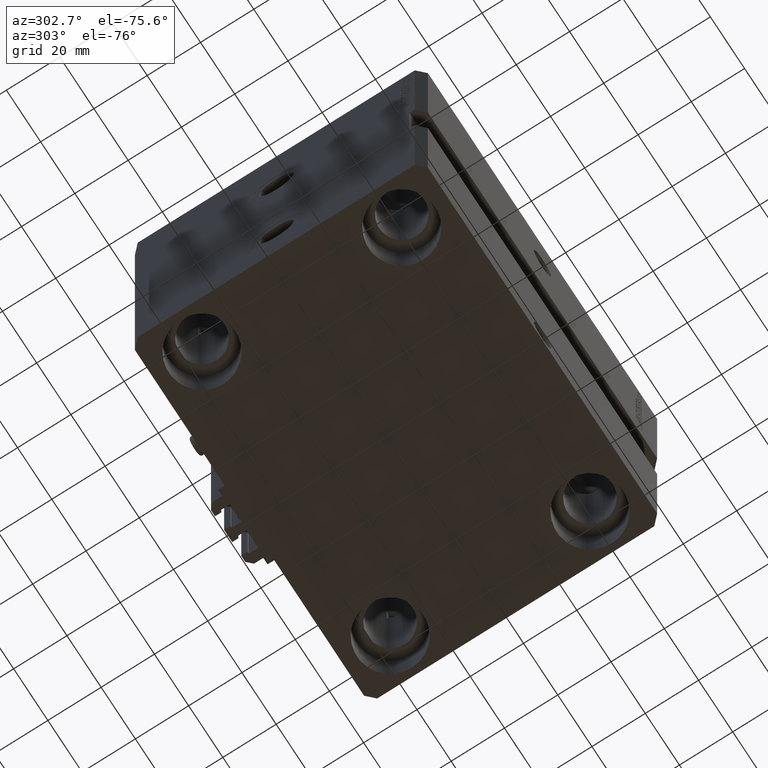
[diagram: clean part render]
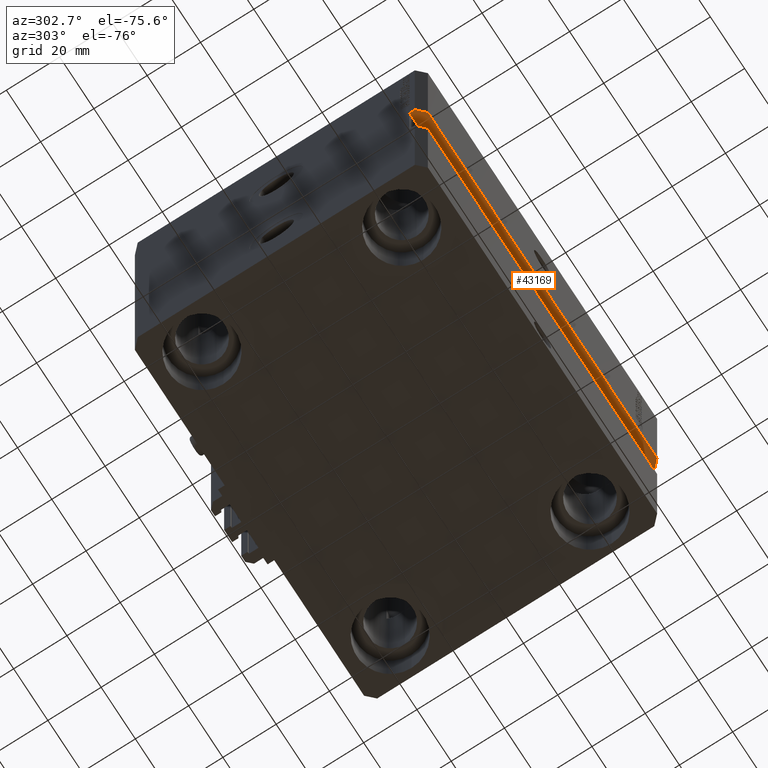
[diagram: same view with one face highlighted and labeled with its STEP entity id]
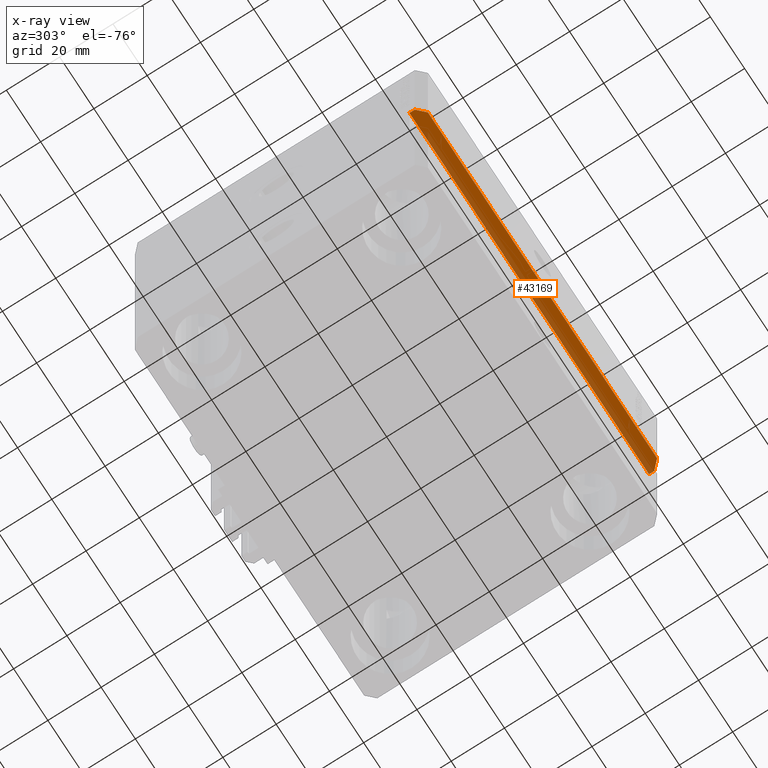
[diagram: x-ray of the same camera — body ghosted, the highlighted face saturated]
A machine part, auxiliary view. The second image highlights one B-rep face of the part: STEP entity #43169.
The next image is the same camera in x-ray: the body ghosted, the highlighted face saturated — about 31% of this face is hidden behind the body in this view.
In plain terms, the highlighted planar face has unit normal (-0, -0, 1).
Its self-contained STEP definition (entity closure, byte-faithful):
#1230 = DIRECTION ( 'NONE',  ( 1.176083712526788232E-16, -1.000000000000000000, -0.000000000000000000 ) ) ;
#1464 = VECTOR ( 'NONE', #26052, 1000.000000000000000 ) ;
#1690 = EDGE_CURVE ( 'NONE', #7225, #8990, #40125, .T. ) ;
#2244 = EDGE_CURVE ( 'NONE', #18995, #4170, #47154, .T. ) ;
#4095 = AXIS2_PLACEMENT_3D ( 'NONE', #7410, #14577, #48605 ) ;
#4170 = VERTEX_POINT ( 'NONE', #43312 ) ;
#5385 = ORIENTED_EDGE ( 'NONE', *, *, #12708, .T. ) ;
#5950 = DIRECTION ( 'NONE',  ( -0.7071067811865474617, -0.7071067811865474617, -2.102802400022912892E-16 ) ) ;
#6751 = CARTESIAN_POINT ( 'NONE',  ( 70.00000000000001421, -54.99999999999997868, -49.99999999999996447 ) ) ;
#6801 = DIRECTION ( 'NONE',  ( -0.7071067811865465735, 0.7071067811865483499, -2.102802400022909441E-16 ) ) ;
#6896 = VECTOR ( 'NONE', #5950, 1000.000000000000114 ) ;
#6906 = ORIENTED_EDGE ( 'NONE', *, *, #1690, .T. ) ;
#7225 = VERTEX_POINT ( 'NONE', #21098 ) ;
#7410 = CARTESIAN_POINT ( 'NONE',  ( 70.00000000000001421, -49.99999999999997868, -49.99999999999996447 ) ) ;
#8990 = VERTEX_POINT ( 'NONE', #46773 ) ;
#9133 = ORIENTED_EDGE ( 'NONE', *, *, #32211, .F. ) ;
#9999 = EDGE_CURVE ( 'NONE', #4170, #7225, #28466, .T. ) ;
#11129 = VERTEX_POINT ( 'NONE', #28902 ) ;
#12581 = VECTOR ( 'NONE', #43766, 1000.000000000000000 ) ;
#12708 = EDGE_CURVE ( 'NONE', #40856, #18995, #19514, .T. ) ;
#14577 = DIRECTION ( 'NONE',  ( -2.973811673103097172E-16, -3.497451472858589416E-32, 1.000000000000000000 ) ) ;
#14821 = PLANE ( 'NONE',  #4095 ) ;
#15435 = LINE ( 'NONE', #37885, #1464 ) ;
#16533 = CARTESIAN_POINT ( 'NONE',  ( -70.00000000000002842, -51.99999999999998579, -50.00000000000000000 ) ) ;
#18460 = DIRECTION ( 'NONE',  ( -1.000000000000000000, -9.912705577010323084E-17, -2.973811673103097172E-16 ) ) ;
#18995 = VERTEX_POINT ( 'NONE', #39521 ) ;
#19514 = LINE ( 'NONE', #30846, #20531 ) ;
#20531 = VECTOR ( 'NONE', #1230, 1000.000000000000000 ) ;
#21098 = CARTESIAN_POINT ( 'NONE',  ( -67.00000000000001421, -55.00000000000000000, -49.99999999999996447 ) ) ;
#26052 = DIRECTION ( 'NONE',  ( 1.176083712526788232E-16, -1.000000000000000000, -0.000000000000000000 ) ) ;
#26107 = LINE ( 'NONE', #29055, #29752 ) ;
#28466 = LINE ( 'NONE', #6751, #12581 ) ;
#28902 = CARTESIAN_POINT ( 'NONE',  ( -70.00000000000001421, -49.99999999999999289, -50.00000000000000000 ) ) ;
#29055 = CARTESIAN_POINT ( 'NONE',  ( 70.00000000000001421, -49.99999999999997868, -49.99999999999996447 ) ) ;
#29752 = VECTOR ( 'NONE', #18460, 1000.000000000000000 ) ;
#30067 = CARTESIAN_POINT ( 'NONE',  ( 70.00000000000001421, -49.99999999999997868, -49.99999999999996447 ) ) ;
#30846 = CARTESIAN_POINT ( 'NONE',  ( 70.00000000000001421, -49.99999999999997868, -49.99999999999996447 ) ) ;
#32211 = EDGE_CURVE ( 'NONE', #40856, #11129, #26107, .T. ) ;
#33550 = FACE_OUTER_BOUND ( 'NONE', #46636, .T. ) ;
#34524 = ORIENTED_EDGE ( 'NONE', *, *, #38385, .F. ) ;
#34771 = ORIENTED_EDGE ( 'NONE', *, *, #2244, .T. ) ;
#37885 = CARTESIAN_POINT ( 'NONE',  ( -70.00000000000001421, -49.99999999999999289, -50.00000000000000000 ) ) ;
#38385 = EDGE_CURVE ( 'NONE', #11129, #8990, #15435, .T. ) ;
#39521 = CARTESIAN_POINT ( 'NONE',  ( 70.00000000000001421, -51.99999999999997868, -49.99999999999996447 ) ) ;
#40125 = LINE ( 'NONE', #16533, #40762 ) ;
#40762 = VECTOR ( 'NONE', #6801, 1000.000000000000114 ) ;
#40856 = VERTEX_POINT ( 'NONE', #30067 ) ;
#43169 = ADVANCED_FACE ( 'NONE', ( #33550 ), #14821, .F. ) ;
#43312 = CARTESIAN_POINT ( 'NONE',  ( 67.00000000000001421, -54.99999999999997868, -49.99999999999996447 ) ) ;
#43766 = DIRECTION ( 'NONE',  ( -1.000000000000000000, -9.912705577010323084E-17, -2.973811673103097172E-16 ) ) ;
#45380 = ORIENTED_EDGE ( 'NONE', *, *, #9999, .T. ) ;
#46636 = EDGE_LOOP ( 'NONE', ( #34771, #45380, #6906, #34524, #9133, #5385 ) ) ;
#46675 = CARTESIAN_POINT ( 'NONE',  ( 67.00000000000000000, -54.99999999999999289, -49.99999999999996447 ) ) ;
#46773 = CARTESIAN_POINT ( 'NONE',  ( -70.00000000000001421, -52.00000000000000000, -50.00000000000000000 ) ) ;
#47154 = LINE ( 'NONE', #46675, #6896 ) ;
#48605 = DIRECTION ( 'NONE',  ( 1.000000000000000000, 0.000000000000000000, 2.973811673103097172E-16 ) ) ;